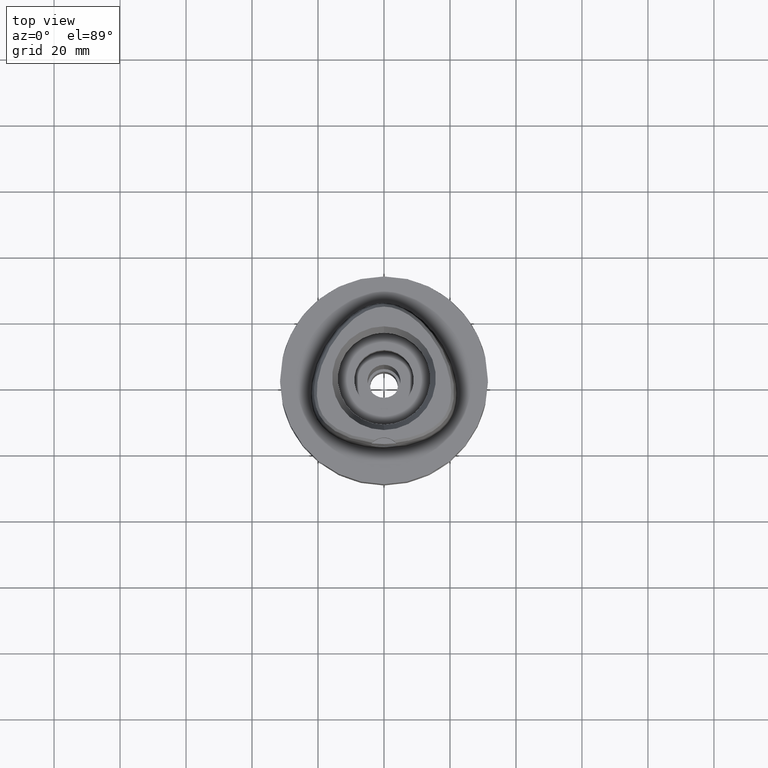
[diagram: clean part render]
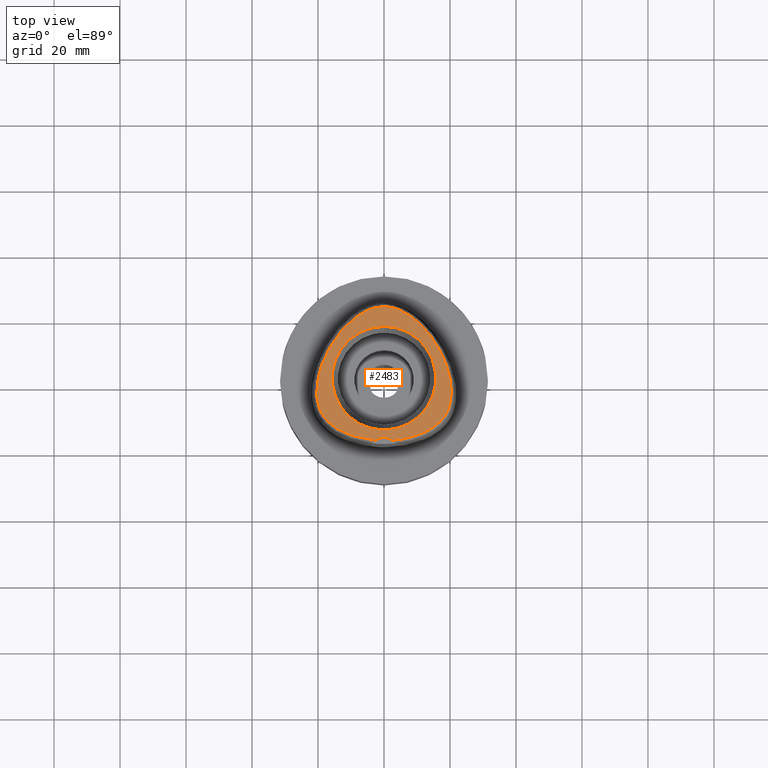
[diagram: same view with one face highlighted and labeled with its STEP entity id]
A machine part, top view. The second image highlights one B-rep face of the part: STEP entity #2483.
In plain terms, the highlighted planar face has unit normal (0, 0, 1).
Its self-contained STEP definition (entity closure, byte-faithful):
#22 = EDGE_CURVE ( 'NONE', #196, #217, #2189, .T. ) ;
#26 = CARTESIAN_POINT ( 'NONE',  ( -19.64434054693513332, 1.520253387636232967, 37.99999999999408118 ) ) ;
#45 = CARTESIAN_POINT ( 'NONE',  ( -18.31748213707524897, -11.58791794387528817, 37.99999999999759837 ) ) ;
#58 = CARTESIAN_POINT ( 'NONE',  ( 1.325020189552444716, 21.61081414408939239, 38.00000000000275691 ) ) ;
#65 = CARTESIAN_POINT ( 'NONE',  ( 17.91165267838898956, -12.13575389397589888, 38.00000000000652989 ) ) ;
#68 = CARTESIAN_POINT ( 'NONE',  ( -0.6498990081535387375, 21.67378274708137198, 37.99999999999295142 ) ) ;
#113 = CARTESIAN_POINT ( 'NONE',  ( 14.34383722811739759, 12.54786717290302533, 38.00000000000110134 ) ) ;
#144 = CARTESIAN_POINT ( 'NONE',  ( -4.254559144978110830, 20.86660163697692028, 37.99999999999525357 ) ) ;
#158 = CIRCLE ( 'NONE', #2121, 15.71487483155999776 ) ;
#164 = DIRECTION ( 'NONE',  ( 0.0000000000000000000, 0.0000000000000000000, 1.000000000000000000 ) ) ;
#166 = EDGE_LOOP ( 'NONE', ( #3451, #540, #2859 ) ) ;
#170 = CARTESIAN_POINT ( 'NONE',  ( 8.936919536466767511, -17.64796721715232763, 38.00000000000278533 ) ) ;
#173 = CARTESIAN_POINT ( 'NONE',  ( -5.893543501601349988, 20.13235399352026178, 38.00000000000211742 ) ) ;
#192 = CARTESIAN_POINT ( 'NONE',  ( 20.36412151360999090, -5.276385427453468502, 38.00000000000178346 ) ) ;
#196 = VERTEX_POINT ( 'NONE', #2492 ) ;
#217 = VERTEX_POINT ( 'NONE', #1756 ) ;
#356 = CARTESIAN_POINT ( 'NONE',  ( -11.31790883121088953, -16.80796958613307623, 37.99999999999374012 ) ) ;
#381 = CARTESIAN_POINT ( 'NONE',  ( -13.40435640711414678, 13.76268382997488260, 37.99999999999326405 ) ) ;
#404 = CARTESIAN_POINT ( 'NONE',  ( -7.655222869372851235, 19.09452359226368756, 37.99999999999105427 ) ) ;
#467 = CARTESIAN_POINT ( 'NONE',  ( 10.48999540691009003, 16.86597469869822774, 38.00000000000330402 ) ) ;
#479 = CARTESIAN_POINT ( 'NONE',  ( -2.735698246183480453, 21.34559102902582595, 38.00000000000061817 ) ) ;
#500 = CARTESIAN_POINT ( 'NONE',  ( 13.40430406168297139, 13.76274261013268863, 38.00000000000531486 ) ) ;
#527 = CARTESIAN_POINT ( 'NONE',  ( 0.2185816947241267238, 21.68728795389733932, 37.99999999999970157 ) ) ;
#540 = ORIENTED_EDGE ( 'NONE', *, *, #4615, .F. ) ;
#548 = CARTESIAN_POINT ( 'NONE',  ( 19.26272899268325389, 2.870227893749460080, 37.99999999999855760 ) ) ;
#550 = DIRECTION ( 'NONE',  ( 0.0000000000000000000, -1.000000000000000000, 0.0000000000000000000 ) ) ;
#554 = CARTESIAN_POINT ( 'NONE',  ( 16.36283630828486935, -13.76236604535136898, 38.00000000000057554 ) ) ;
#557 = CARTESIAN_POINT ( 'NONE',  ( -5.058220461389645983, 20.53445508814813536, 37.99999999999768363 ) ) ;
#577 = CARTESIAN_POINT ( 'NONE',  ( 20.15127154947451160, -7.022178451340925776, 38.00000000000191136 ) ) ;
#584 = CARTESIAN_POINT ( 'NONE',  ( 6.196495988003707822, -18.31673538864596651, 38.00000000000061817 ) ) ;
#589 = CARTESIAN_POINT ( 'NONE',  ( 0.0000000000000000000, -23.00000000000000000, 38.00000000000000000 ) ) ;
#710 = CARTESIAN_POINT ( 'NONE',  ( -4.706994425064380927, -18.56721852572606224, 38.00000000000351719 ) ) ;
#761 = DIRECTION ( 'NONE',  ( 0.0000000000000000000, 0.0000000000000000000, 1.000000000000000000 ) ) ;
#763 = CARTESIAN_POINT ( 'NONE',  ( -12.37132652997711091, -16.34104299088245682, 37.99999999999698730 ) ) ;
#787 = CARTESIAN_POINT ( 'NONE',  ( -9.524337278002615648, 17.70558492631771941, 37.99999999999600675 ) ) ;
#795 = AXIS2_PLACEMENT_3D ( 'NONE', #3483, #761, #1172 ) ;
#816 = CARTESIAN_POINT ( 'NONE',  ( -2.682279906006999948, -18.78035848609999903, 38.00000000000000000 ) ) ;
#839 = FACE_OUTER_BOUND ( 'NONE', #166, .T. ) ;
#841 = EDGE_CURVE ( 'NONE', #3798, #1424, #4819, .T. ) ;
#891 = CARTESIAN_POINT ( 'NONE',  ( 19.28677546796753717, -9.867757137504936438, 37.99999999999682387 ) ) ;
#914 = CARTESIAN_POINT ( 'NONE',  ( 16.09765529146239871, 9.909410920130644840, 37.99999999999682387 ) ) ;
#941 = CARTESIAN_POINT ( 'NONE',  ( 18.79595068775720534, 4.257753965101214177, 38.00000000000009237 ) ) ;
#947 = CARTESIAN_POINT ( 'NONE',  ( 16.93855157778128273, -13.22377441789451069, 38.00000000000013500 ) ) ;
#950 = CARTESIAN_POINT ( 'NONE',  ( -1.323674540694167012, 21.61098849315722958, 38.00000000000291323 ) ) ;
#1104 = CARTESIAN_POINT ( 'NONE',  ( -20.30498420087005584, -2.177378896257953222, 38.00000000000483880 ) ) ;
#1124 = CARTESIAN_POINT ( 'NONE',  ( -20.15090095365068024, -7.024227649787429861, 37.99999999999874944 ) ) ;
#1147 = PLANE ( 'NONE',  #3767 ) ;
#1150 = CARTESIAN_POINT ( 'NONE',  ( -19.28591707037007197, -9.869682450887097502, 37.99999999999630518 ) ) ;
#1172 = DIRECTION ( 'NONE',  ( 0.0000000000000000000, 1.000000000000000000, 0.0000000000000000000 ) ) ;
#1174 = CARTESIAN_POINT ( 'NONE',  ( -19.54919922642468677, -9.228169790568733433, 38.00000000000495959 ) ) ;
#1196 = CARTESIAN_POINT ( 'NONE',  ( -18.99520880204521234, -10.46968343925995271, 38.00000000000007105 ) ) ;
#1261 = CARTESIAN_POINT ( 'NONE',  ( 6.760281394350364792, 19.65404668909772923, 37.99999999999407407 ) ) ;
#1269 = CARTESIAN_POINT ( 'NONE',  ( 2.845098933833257071, -18.76733062685549314, 38.00000000000499512 ) ) ;
#1315 = CARTESIAN_POINT ( 'NONE',  ( 0.6513209347954815875, 21.67370899611348634, 37.99999999999967315 ) ) ;
#1321 = CARTESIAN_POINT ( 'NONE',  ( 18.31883910943028937, -11.58595831187867375, 38.00000000000014921 ) ) ;
#1343 = CARTESIAN_POINT ( 'NONE',  ( 20.30478359881763240, -2.175347700950886143, 38.00000000000031974 ) ) ;
#1359 = CARTESIAN_POINT ( 'NONE',  ( -3.470944899555000168E-11, 21.68728795390000030, 38.00000000000000000 ) ) ;
#1424 = VERTEX_POINT ( 'NONE', #1558 ) ;
#1473 = AXIS2_PLACEMENT_3D ( 'NONE', #589, #4499, #1832 ) ;
#1507 = CARTESIAN_POINT ( 'NONE',  ( -20.36398648679419665, -5.278470727084956238, 37.99999999999324984 ) ) ;
#1555 = CARTESIAN_POINT ( 'NONE',  ( -11.46564124494107517, 15.92741340513643955, 37.99999999999403855 ) ) ;
#1558 = CARTESIAN_POINT ( 'NONE',  ( 2.682287482605000051, -18.78036330228999873, 38.00000000000000000 ) ) ;
#1626 = CARTESIAN_POINT ( 'NONE',  ( 19.78323211892919531, -8.541156231035289537, 37.99999999999540989 ) ) ;
#1648 = CARTESIAN_POINT ( 'NONE',  ( -3.470944899555000168E-11, 21.68728795390000030, 38.00000000000000000 ) ) ;
#1723 = CARTESIAN_POINT ( 'NONE',  ( 19.94150023628163382, 0.2261566111942269475, 38.00000000000383693 ) ) ;
#1734 = CARTESIAN_POINT ( 'NONE',  ( -19.94188961899770263, 0.2242544969879294026, 38.00000000000372324 ) ) ;
#1748 = CARTESIAN_POINT ( 'NONE',  ( 20.27923816685335012, -6.179850483267726347, 38.00000000000608225 ) ) ;
#1756 = CARTESIAN_POINT ( 'NONE',  ( 0.0000000000000000000, -15.71487483155999776, 38.00000000000000000 ) ) ;
#1832 = DIRECTION ( 'NONE',  ( 0.0000000000000000000, 1.000000000000000000, 0.0000000000000000000 ) ) ;
#1886 = CARTESIAN_POINT ( 'NONE',  ( -13.33457781970254707, -15.85148397417621879, 38.00000000000253664 ) ) ;
#1898 = CARTESIAN_POINT ( 'NONE',  ( -2.682279906006999948, -18.78035848609999903, 38.00000000000000000 ) ) ;
#1911 = CARTESIAN_POINT ( 'NONE',  ( -16.88647904405542732, 8.517821442303345592, 37.99999999999571543 ) ) ;
#1936 = CARTESIAN_POINT ( 'NONE',  ( -12.44116897271442213, 14.89128547410214232, 37.99999999999705125 ) ) ;
#1964 = CARTESIAN_POINT ( 'NONE',  ( -6.759433772717707178, 19.65454812513298677, 37.99999999999008082 ) ) ;
#2034 = CARTESIAN_POINT ( 'NONE',  ( 18.67722910598087793, -11.03372143228001967, 38.00000000000169820 ) ) ;
#2039 = ORIENTED_EDGE ( 'NONE', *, *, #22, .F. ) ;
#2080 = CARTESIAN_POINT ( 'NONE',  ( 9.524842839487144275, 17.70516372194678922, 38.00000000000837730 ) ) ;
#2081 = CARTESIAN_POINT ( 'NONE',  ( 0.0000000000000000000, 0.0000000000000000000, 38.00000000000000000 ) ) ;
#2102 = CARTESIAN_POINT ( 'NONE',  ( 19.64387775268262715, 1.522048414457673582, 38.00000000000042633 ) ) ;
#2121 = AXIS2_PLACEMENT_3D ( 'NONE', #2081, #164, #550 ) ;
#2136 = CARTESIAN_POINT ( 'NONE',  ( 19.98468477322789028, -7.807876343103209216, 38.00000000000099476 ) ) ;
#2176 = EDGE_CURVE ( 'NONE', #217, #196, #158, .T. ) ;
#2189 = CIRCLE ( 'NONE', #795, 15.71487483155999776 ) ;
#2293 = FACE_BOUND ( 'NONE', #3210, .T. ) ;
#2296 = CARTESIAN_POINT ( 'NONE',  ( -15.71788912669206617, -14.29843101565928976, 37.99999999999300115 ) ) ;
#2321 = CARTESIAN_POINT ( 'NONE',  ( -17.45119705494447615, -12.68365517585735702, 37.99999999999639755 ) ) ;
#2344 = CARTESIAN_POINT ( 'NONE',  ( -8.578220530114329279, 18.44656747109316441, 37.99999999999866418 ) ) ;
#2364 = CIRCLE ( 'NONE', #1473, 5.000000000000000888 ) ;
#2372 = CARTESIAN_POINT ( 'NONE',  ( -2.841965291530533566, -18.76757795571559839, 37.99999999999859313 ) ) ;
#2410 = CARTESIAN_POINT ( 'NONE',  ( 18.99619228226237766, -10.46780014453076113, 37.99999999999742784 ) ) ;
#2433 = CARTESIAN_POINT ( 'NONE',  ( 2.736932690726343598, 21.34527940057140327, 37.99999999999773337 ) ) ;
#2440 = CARTESIAN_POINT ( 'NONE',  ( 15.00628712263160658, -14.82385870794167637, 38.00000000000026290 ) ) ;
#2483 = ADVANCED_FACE ( 'NONE', ( #839, #2293 ), #1147, .T. ) ;
#2491 = CARTESIAN_POINT ( 'NONE',  ( 7.606839420237307969, -18.00827588386385258, 38.00000000000125766 ) ) ;
#2492 = CARTESIAN_POINT ( 'NONE',  ( 0.0000000000000000000, 15.71487483155999776, 38.00000000000000000 ) ) ;
#2648 = CARTESIAN_POINT ( 'NONE',  ( -19.98419490691979661, -7.809898894995793484, 38.00000000000072475 ) ) ;
#2668 = DIRECTION ( 'NONE',  ( 0.0000000000000000000, 0.0000000000000000000, 1.000000000000000000 ) ) ;
#2671 = CARTESIAN_POINT ( 'NONE',  ( -18.24302769442332917, 5.671232572958786911, 37.99999999999432276 ) ) ;
#2699 = CARTESIAN_POINT ( 'NONE',  ( -16.09805956313454445, 9.908742513515822026, 38.00000000000581224 ) ) ;
#2724 = CARTESIAN_POINT ( 'NONE',  ( -10.48962422759891133, 16.86631853278861115, 38.00000000000212452 ) ) ;
#2748 = CARTESIAN_POINT ( 'NONE',  ( -7.599370508970849869, -18.01010694911330035, 38.00000000000195399 ) ) ;
#2792 = CARTESIAN_POINT ( 'NONE',  ( 2.018320379028150757, 21.50256508436445557, 38.00000000000277112 ) ) ;
#2814 = CARTESIAN_POINT ( 'NONE',  ( 12.44125753246572330, 14.89118158853771234, 38.00000000000115818 ) ) ;
#2822 = CARTESIAN_POINT ( 'NONE',  ( 13.33890749495574113, -15.84912955619351216, 37.99999999999807443 ) ) ;
#2842 = CARTESIAN_POINT ( 'NONE',  ( 5.894487344449193422, 20.13186406532339845, 37.99999999999736389 ) ) ;
#2859 = ORIENTED_EDGE ( 'NONE', *, *, #3122, .F. ) ;
#2873 = CARTESIAN_POINT ( 'NONE',  ( 17.60373714027898728, 7.099883643192303140, 37.99999999999877787 ) ) ;
#2879 = CARTESIAN_POINT ( 'NONE',  ( 10.17751632998255573, -17.24426134458537163, 37.99999999999555200 ) ) ;
#2897 = CARTESIAN_POINT ( 'NONE',  ( 11.46587147799986894, 15.92717600803214495, 38.00000000000373035 ) ) ;
#3065 = CARTESIAN_POINT ( 'NONE',  ( -20.38301517462678802, -3.278344853328215791, 38.00000000000192557 ) ) ;
#3090 = CARTESIAN_POINT ( 'NONE',  ( -20.40060226222941253, -4.311417605381685725, 38.00000000000285638 ) ) ;
#3122 = EDGE_CURVE ( 'NONE', #1424, #4865, #2364, .T. ) ;
#3140 = CARTESIAN_POINT ( 'NONE',  ( 0.0000000000000000000, 0.0000000000000000000, 38.00000000000000000 ) ) ;
#3143 = CARTESIAN_POINT ( 'NONE',  ( -10.17136073855427725, -17.24644253470652444, 37.99999999999883471 ) ) ;
#3164 = ORIENTED_EDGE ( 'NONE', *, *, #2176, .F. ) ;
#3194 = CARTESIAN_POINT ( 'NONE',  ( 11.32341394162625114, -16.80569392800065387, 37.99999999999596412 ) ) ;
#3210 = EDGE_LOOP ( 'NONE', ( #3164, #2039 ) ) ;
#3275 = CARTESIAN_POINT ( 'NONE',  ( 2.682287482605000051, -18.78036330228999873, 38.00000000000000000 ) ) ;
#3299 = CARTESIAN_POINT ( 'NONE',  ( 20.15982952132226558, -1.007721426052008207, 38.00000000000196820 ) ) ;
#3451 = ORIENTED_EDGE ( 'NONE', *, *, #841, .F. ) ;
#3461 = CARTESIAN_POINT ( 'NONE',  ( -14.21001600787923103, -15.34519100086070686, 37.99999999999241140 ) ) ;
#3483 = CARTESIAN_POINT ( 'NONE',  ( 0.0000000000000000000, 0.0000000000000000000, 38.00000000000000000 ) ) ;
#3485 = CARTESIAN_POINT ( 'NONE',  ( -17.91005512243956233, -12.13778127739870882, 38.00000000000144951 ) ) ;
#3507 = CARTESIAN_POINT ( 'NONE',  ( -18.67608643721831996, -11.03561202291359855, 37.99999999999814548 ) ) ;
#3536 = CARTESIAN_POINT ( 'NONE',  ( -16.36032397154091811, -13.76458520345165049, 38.00000000000099476 ) ) ;
#3626 = CARTESIAN_POINT ( 'NONE',  ( 8.578848111816265387, 18.44609846599560754, 37.99999999999733546 ) ) ;
#3650 = CARTESIAN_POINT ( 'NONE',  ( 16.88599964842984136, 8.518708218769518226, 38.00000000000356692 ) ) ;
#3656 = CARTESIAN_POINT ( 'NONE',  ( 17.45306278053539728, -12.68156296993235266, 38.00000000000346745 ) ) ;
#3659 = CARTESIAN_POINT ( 'NONE',  ( -2.017025177696782023, 21.50280829368402280, 37.99999999999245404 ) ) ;
#3708 = CARTESIAN_POINT ( 'NONE',  ( 20.38292172607433628, -3.276278498261577798, 38.00000000000108002 ) ) ;
#3767 = AXIS2_PLACEMENT_3D ( 'NONE', #3140, #2668, #4273 ) ;
#3798 = VERTEX_POINT ( 'NONE', #1359 ) ;
#3841 = CARTESIAN_POINT ( 'NONE',  ( -8.930096025510668056, -17.65000298921372135, 37.99999999999823075 ) ) ;
#3866 = CARTESIAN_POINT ( 'NONE',  ( -18.79649882724836729, 4.256255933891491594, 37.99999999999071321 ) ) ;
#3889 = CARTESIAN_POINT ( 'NONE',  ( -15.24692477332077267, 11.25717358966382697, 37.99999999999962341 ) ) ;
#3912 = CARTESIAN_POINT ( 'NONE',  ( -3.522896839654221068, -18.70811514173103873, 38.00000000000024869 ) ) ;
#3941 = CARTESIAN_POINT ( 'NONE',  ( -15.00295592774124032, -14.82617991125973766, 37.99999999999752021 ) ) ;
#3975 = CARTESIAN_POINT ( 'NONE',  ( 7.655962789342432906, 19.09402979099946407, 38.00000000000106581 ) ) ;
#4003 = CARTESIAN_POINT ( 'NONE',  ( 5.059249257019739154, 20.53399274678983133, 38.00000000000142819 ) ) ;
#4011 = CARTESIAN_POINT ( 'NONE',  ( 12.37622418509411482, -16.33871033285646135, 37.99999999999685940 ) ) ;
#4019 = B_SPLINE_CURVE_WITH_KNOTS ( 'NONE', 3,
 ( #816, #2372, #3912, #710, #4685, #2748, #3841, #3143, #356, #763, #1886, #3461, #3941, #2296, #3536, #4707, #2321, #3485, #45, #3507, #1196, #1150, #1174, #4533, #2648, #1124, #5024, #1507, #3090, #3065, #1104, #4300, #1734, #26, #4628, #3866, #2671, #4658, #1911, #2699, #3889, #4276, #381, #1936, #1555, #2724, #787, #2344, #404, #1964, #173, #557, #144, #4040, #479, #3659, #950, #68, #4838, #4761 ),
 .UNSPECIFIED., .F., .F.,
 ( 4, 1, 1, 1, 1, 1, 1, 1, 1, 1, 1, 1, 1, 1, 1, 1, 1, 1, 1, 1, 1, 1, 1, 1, 1, 1, 1, 1, 1, 1, 1, 1, 1, 1, 1, 1, 1, 1, 1, 1, 1, 1, 1, 1, 1, 1, 1, 1, 1, 1, 1, 1, 1, 1, 1, 1, 1, 4 ),
 ( 0.0000000000000000000, 0.005420919554200098744, 0.02318126027639999531, 0.04094160099879995407, 0.05870194172099996166, 0.07646228244330000035, 0.09422262316550000794, 0.1119829638877999356, 0.1297433046099999432, 0.1475036453321999508, 0.1652639860544999895, 0.1830243267768000281, 0.2007846674991000668, 0.2185450082212999634, 0.2363053489436000021, 0.2540656896658000097, 0.2718260303881000484, 0.2895863711103000560, 0.3073467118325999836, 0.3251070525547999912, 0.3428673932771000299, 0.3606277339994000686, 0.3783880747216000762, 0.3961484154438998928, 0.4139087561661000114, 0.4316690968884000501, 0.4494294376106000577, 0.4671897783328999854, 0.4849501190552000240, 0.5027104597774000316, 0.5204708004996999593, 0.5382311412219000779, 0.5559914819442000056, 0.5737518226664000132, 0.5915121633886999408, 0.6092725041108999484, 0.6270328448331999871, 0.6447931855555000258, 0.6625535262777000334, 0.6803138669999999610, 0.6980742077221999686, 0.7158345484445000073, 0.7335948891667000149, 0.7513552298890000536, 0.7691155706112000612, 0.7868759113336000199, 0.8046362520558000275, 0.8223965927780999552, 0.8401569335002999628, 0.8579172742224999704, 0.8756776149448000091, 0.8934379556670000166, 0.9111982963893099363, 0.9289586371115700070, 0.9467189778338299666, 0.9644793185560800453, 0.9822396592783400049, 1.000000000000000000 ),
 .UNSPECIFIED. ) ;
#4040 = CARTESIAN_POINT ( 'NONE',  ( -3.481017203589301001, 21.13509756881535750, 37.99999999999796785 ) ) ;
#4061 = CARTESIAN_POINT ( 'NONE',  ( 14.21382211798807305, -15.34284287400373437, 37.99999999999871392 ) ) ;
#4083 = CARTESIAN_POINT ( 'NONE',  ( 20.40062138794542790, -4.309334958867794718, 38.00000000000708411 ) ) ;
#4273 = DIRECTION ( 'NONE',  ( 1.000000000000000000, 0.0000000000000000000, 0.0000000000000000000 ) ) ;
#4276 = CARTESIAN_POINT ( 'NONE',  ( -14.34402387965500481, 12.54761970512996960, 37.99999999999743494 ) ) ;
#4300 = CARTESIAN_POINT ( 'NONE',  ( -20.16012968311991216, -1.009698174524062741, 37.99999999999902656 ) ) ;
#4365 = CARTESIAN_POINT ( 'NONE',  ( 3.482188079160017935, 21.13472718027291464, 37.99999999999550937 ) ) ;
#4410 = CARTESIAN_POINT ( 'NONE',  ( 15.24661770199598898, 11.25762885478184927, 37.99999999999864286 ) ) ;
#4438 = CARTESIAN_POINT ( 'NONE',  ( 18.24247239569512047, 5.672548708071616375, 37.99999999999932498 ) ) ;
#4445 = CARTESIAN_POINT ( 'NONE',  ( 15.72078707639910533, -14.29615620309152391, 38.00000000000004974 ) ) ;
#4467 = CARTESIAN_POINT ( 'NONE',  ( 4.715576077242054076, -18.56597918135152625, 37.99999999999584332 ) ) ;
#4499 = DIRECTION ( 'NONE',  ( 0.0000000000000000000, 0.0000000000000000000, 1.000000000000000000 ) ) ;
#4533 = CARTESIAN_POINT ( 'NONE',  ( -19.78262210840763657, -8.543146992552681951, 37.99999999999972289 ) ) ;
#4615 = EDGE_CURVE ( 'NONE', #4865, #3798, #4019, .T. ) ;
#4628 = CARTESIAN_POINT ( 'NONE',  ( -19.26324493738687238, 2.868570891457416838, 38.00000000000129319 ) ) ;
#4658 = CARTESIAN_POINT ( 'NONE',  ( -17.60426951087317704, 7.098774535282602827, 37.99999999999404565 ) ) ;
#4685 = CARTESIAN_POINT ( 'NONE',  ( -6.188376196366387028, -18.31830638231753738, 37.99999999999816680 ) ) ;
#4707 = CARTESIAN_POINT ( 'NONE',  ( -16.93638123745465762, -13.22593246128538702, 37.99999999999003109 ) ) ;
#4758 = CARTESIAN_POINT ( 'NONE',  ( 19.54993126781448609, -9.226212439885525640, 38.00000000000573408 ) ) ;
#4761 = CARTESIAN_POINT ( 'NONE',  ( -3.470944899555000168E-11, 21.68728795390000030, 38.00000000000000000 ) ) ;
#4800 = CARTESIAN_POINT ( 'NONE',  ( 4.255661039971903925, 20.86618068829453421, 37.99999999999916866 ) ) ;
#4807 = CARTESIAN_POINT ( 'NONE',  ( 3.529311563348365599, -18.70747079909828514, 38.00000000000381561 ) ) ;
#4819 = B_SPLINE_CURVE_WITH_KNOTS ( 'NONE', 3,
 ( #1648, #527, #1315, #58, #2792, #2433, #4365, #4800, #4003, #2842, #1261, #3975, #3626, #2080, #467, #2897, #2814, #500, #113, #4410, #914, #3650, #2873, #4438, #941, #548, #2102, #1723, #3299, #1343, #3708, #4083, #192, #1748, #577, #2136, #1626, #4758, #891, #2410, #2034, #1321, #65, #3656, #947, #554, #4445, #2440, #4061, #2822, #4011, #3194, #2879, #170, #2491, #584, #4467, #4807, #1269, #3275 ),
 .UNSPECIFIED., .F., .F.,
 ( 4, 1, 1, 1, 1, 1, 1, 1, 1, 1, 1, 1, 1, 1, 1, 1, 1, 1, 1, 1, 1, 1, 1, 1, 1, 1, 1, 1, 1, 1, 1, 1, 1, 1, 1, 1, 1, 1, 1, 1, 1, 1, 1, 1, 1, 1, 1, 1, 1, 1, 1, 1, 1, 1, 1, 1, 1, 4 ),
 ( 0.0000000000000000000, 0.01775854187129999318, 0.03551708374169992855, 0.05327562561200005486, 0.07103416748239999023, 0.08879270935270000553, 0.1065512512231000519, 0.1243097930933999562, 0.1420683349638000026, 0.1598268768341000179, 0.1775854187044000332, 0.1953439605747999686, 0.2131025024450999839, 0.2308610443155000302, 0.2486195861857999345, 0.2663781280563000120, 0.2841366699266000273, 0.3018952117970000737, 0.3196537536672999780, 0.3374122955377000244, 0.3551708374080000397, 0.3729293792782999439, 0.3906879211486999903, 0.4084464630190000056, 0.4262050048894000520, 0.4439635467596999563, 0.4617220886301000027, 0.4794806305004000180, 0.4972391723707999533, 0.5149977142410999686, 0.5327562561113999839, 0.5505147979818000303, 0.5682733398521000456, 0.5860318817224999810, 0.6037904235927999963, 0.6215489654632000427, 0.6393075073334999470, 0.6570660492038999934, 0.6748245910742000087, 0.6925831329445000240, 0.7103416748149000703, 0.7281002166851999746, 0.7458587585556000210, 0.7636173004259000363, 0.7813758422962999717, 0.7991343841665999870, 0.8168929260370000334, 0.8346514679073000487, 0.8524100097776999840, 0.8701685516479999993, 0.8879270935183000146, 0.9056856353886799660, 0.9234441772589799813, 0.9412027191293600437, 0.9589612609997000270, 0.9767198028700500023, 0.9944783447403919840, 1.000000000000000000 ),
 .UNSPECIFIED. ) ;
#4838 = CARTESIAN_POINT ( 'NONE',  ( -0.2181979014508854120, 21.68728795389186459, 37.99999999999251088 ) ) ;
#4865 = VERTEX_POINT ( 'NONE', #1898 ) ;
#5024 = CARTESIAN_POINT ( 'NONE',  ( -20.27898581532652500, -6.181921586190239459, 37.99999999999667466 ) ) ;